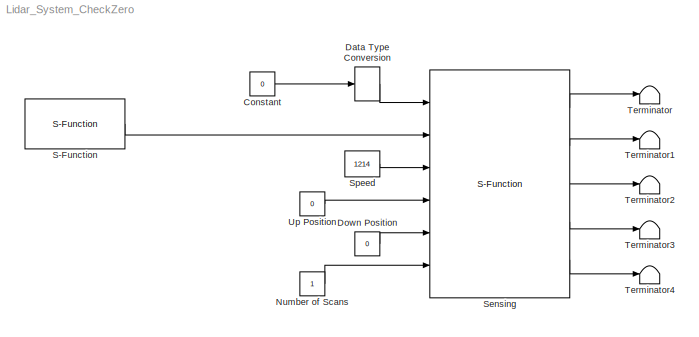
MODEL Lidar_System_CheckZero
KIND model
BLOCK [Constant] Constant
  OutDataType = fixdt(1, 16)
  OutScaling = 2^0
  SID = 436
  Value = 0
BLOCK [DataTypeConversion] Data Type Conversion
  OutDataType = fixdt(1, 16)
  OutDataTypeMode = int32
  OutDataTypeStr = int32
  OutScaling = 2^0
  RndMeth = Floor
  SID = 435
  SaturateOnIntegerOverflow = off
BLOCK [Constant] Down Position
  OutDataType = fixdt(1, 16)
  OutScaling = 2^0
  SID = 439
  Value = 0
BLOCK [Constant] Number of Scans
  OutDataType = fixdt(1, 16)
  OutScaling = 2^0
  SID = 440
BLOCK [S-Function] S-Function
  EnableBusSupport = off
  FunctionName = TT_pot_readerV4
  Ports = [0, 1]
  SID = 434
BLOCK [S-Function] Sensing
  EnableBusSupport = off
  FunctionName = lidarCam_zero
  Ports = [6, 5]
  SID = 433
BLOCK [Constant] Speed
  OutDataType = fixdt(1, 16)
  OutScaling = 2^0
  SID = 437
  Value = 1214
BLOCK [Terminator] Terminator
  SID = 441
BLOCK [Terminator] Terminator1
  SID = 442
BLOCK [Terminator] Terminator2
  SID = 443
BLOCK [Terminator] Terminator3
  SID = 444
BLOCK [Terminator] Terminator4
  SID = 445
BLOCK [Constant] Up Position
  OutDataType = fixdt(1, 16)
  OutScaling = 2^0
  SID = 438
  Value = 0
LINE Constant:1 -> Data Type Conversion:1
LINE Data Type Conversion:1 -> Sensing:1
LINE Down Position:1 -> Sensing:5
LINE Number of Scans:1 -> Sensing:6
LINE S-Function:1 -> Sensing:2
LINE Sensing:1 -> Terminator:1
LINE Sensing:2 -> Terminator1:1
LINE Sensing:3 -> Terminator2:1
LINE Sensing:4 -> Terminator3:1
LINE Sensing:5 -> Terminator4:1
LINE Speed:1 -> Sensing:3
LINE Up Position:1 -> Sensing:4
